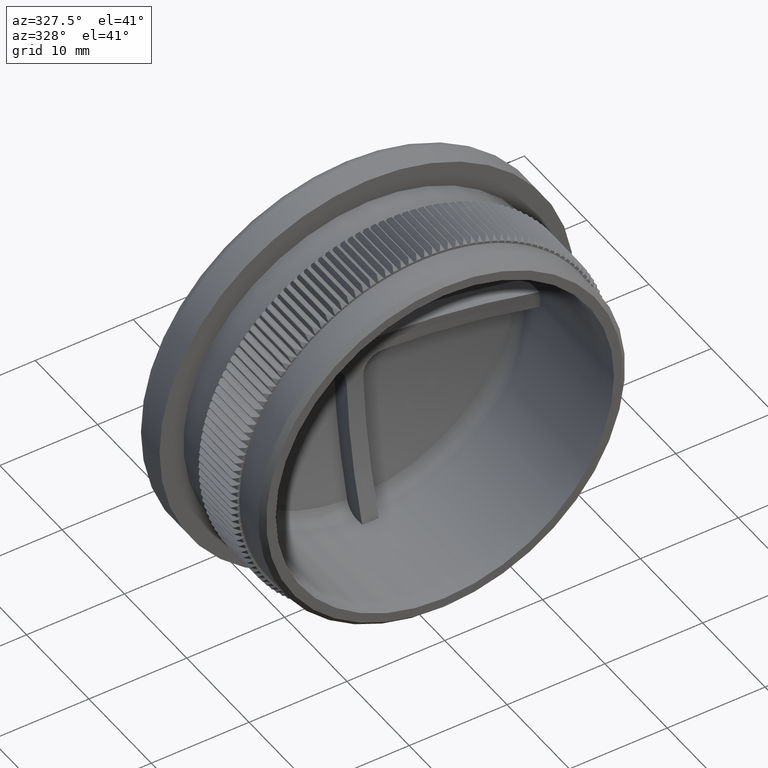
[diagram: clean part render]
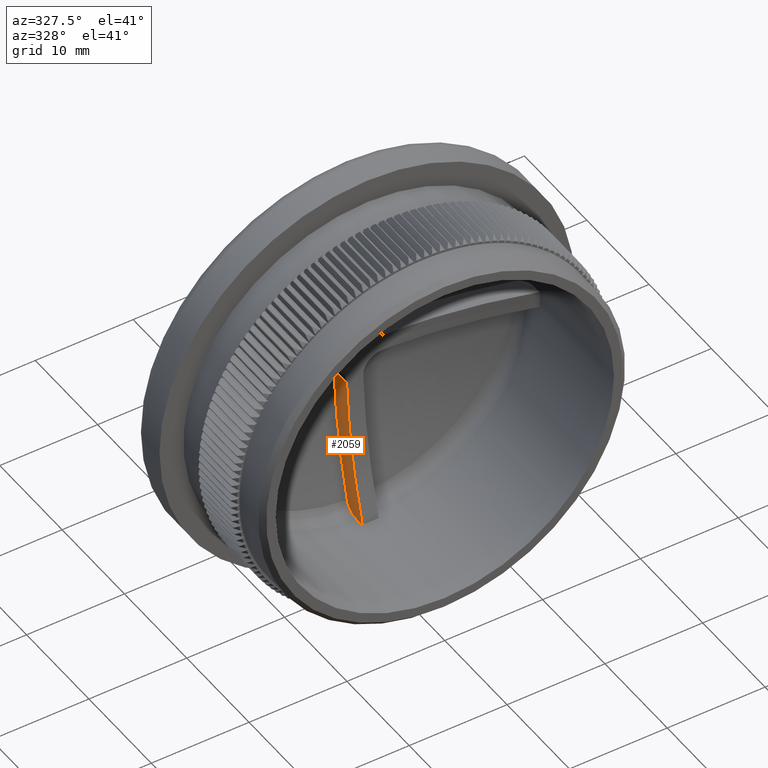
[diagram: same view with one face highlighted and labeled with its STEP entity id]
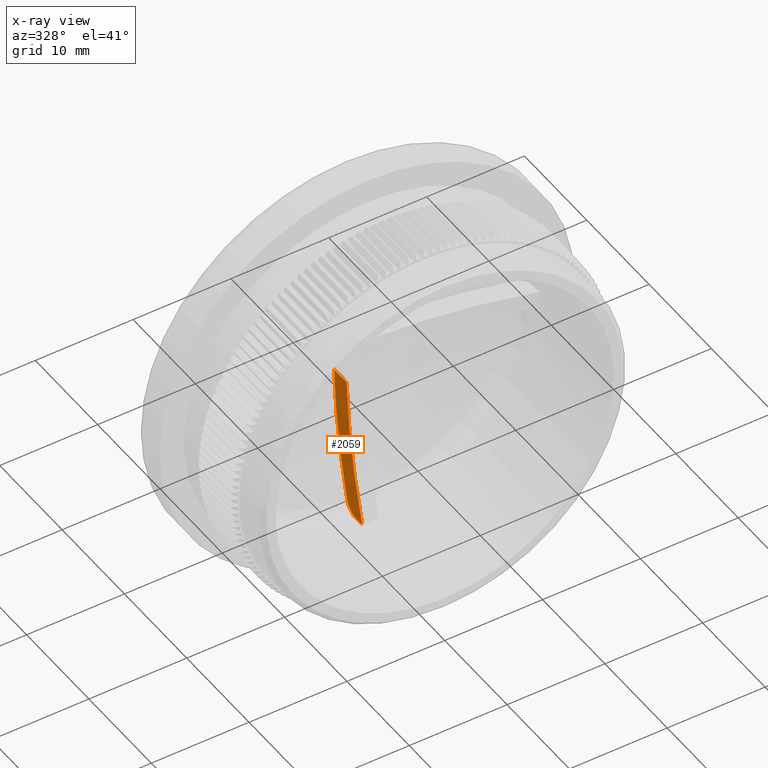
[diagram: x-ray of the same camera — body ghosted, the highlighted face saturated]
A machine part, auxiliary view. The second image highlights one B-rep face of the part: STEP entity #2059.
The next image is the same camera in x-ray: the body ghosted, the highlighted face saturated — about 1% of this face is hidden behind the body in this view.
In plain terms, the highlighted planar face has unit normal (-1, 0, -0).
Its self-contained STEP definition (entity closure, byte-faithful):
#202 = CARTESIAN_POINT ( 'NONE',  ( -0.8499999999999952000, 13.19721144811338200, -17.27910587964591500 ) ) ;
#346 = CARTESIAN_POINT ( 'NONE',  ( -0.8499999999999953100, 13.52293476500674000, -17.16952522254867800 ) ) ;
#2059 = ADVANCED_FACE ( 'NONE', ( #38614 ), #5551, .T. ) ;
#3874 = EDGE_CURVE ( 'NONE', #17814, #41129, #10917, .T. ) ;
#4713 = ORIENTED_EDGE ( 'NONE', *, *, #25062, .T. ) ;
#5551 = PLANE ( 'NONE',  #8185 ) ;
#5818 = CARTESIAN_POINT ( 'NONE',  ( -0.8499999999999953100, 11.91682442351743600, -17.27910587964549900 ) ) ;
#7122 = DIRECTION ( 'NONE',  ( -0.0000000000000000000, 1.000000000000000000, -0.0000000000000000000 ) ) ;
#7245 = CARTESIAN_POINT ( 'NONE',  ( -0.8500000000000003100, -44.72222222222214300, -2.412035669782916800E-016 ) ) ;
#8185 = AXIS2_PLACEMENT_3D ( 'NONE', #19015, #8846, #19307 ) ;
#8744 = VECTOR ( 'NONE', #7122, 1000.000000000000000 ) ;
#8846 = DIRECTION ( 'NONE',  ( -1.000000000000000000, 0.0000000000000000000, -2.837689023274018900E-016 ) ) ;
#10645 = EDGE_CURVE ( 'NONE', #43339, #28114, #31684, .T. ) ;
#10917 = CIRCLE ( 'NONE', #34327, 61.21632130263260100 ) ;
#10951 = LINE ( 'NONE', #38127, #8744 ) ;
#11498 = AXIS2_PLACEMENT_3D ( 'NONE', #31244, #21057, #14002 ) ;
#13973 = CARTESIAN_POINT ( 'NONE',  ( -0.8499999999999956500, 13.91317137231891400, -16.87082022688444700 ) ) ;
#14002 = DIRECTION ( 'NONE',  ( -2.837932155199158700E-016, 0.0000000000000000000, 1.000000000000000000 ) ) ;
#14411 = CARTESIAN_POINT ( 'NONE',  ( -0.8499999999999957600, 14.20773399754421400, -16.48017877426142900 ) ) ;
#16139 = VERTEX_POINT ( 'NONE', #44751 ) ;
#17255 = CARTESIAN_POINT ( 'NONE',  ( -0.8499999999999954300, 12.87208155133065400, -17.27910587964550600 ) ) ;
#17695 = DIRECTION ( 'NONE',  ( 1.000000000000000000, 0.0000000000000000000, 2.837689023274018900E-016 ) ) ;
#17731 = CARTESIAN_POINT ( 'NONE',  ( -0.8499999999999957600, 14.31863615773799100, -16.17451809435572200 ) ) ;
#17814 = VERTEX_POINT ( 'NONE', #17731 ) ;
#19015 = CARTESIAN_POINT ( 'NONE',  ( -0.8500000000000000900, 19.50100000000001200, -0.8499999999999999800 ) ) ;
#19307 = DIRECTION ( 'NONE',  ( -2.837689023274018900E-016, 0.0000000000000000000, 1.000000000000000000 ) ) ;
#19572 = ORIENTED_EDGE ( 'NONE', *, *, #10645, .T. ) ;
#21057 = DIRECTION ( 'NONE',  ( 1.000000000000000000, 0.0000000000000000000, 2.837689023274018900E-016 ) ) ;
#23831 = B_SPLINE_CURVE_WITH_KNOTS ( 'NONE', 3,
 ( #17255, #202, #346, #13973, #24514, #14411, #24371, #31509 ),
 .UNSPECIFIED., .F., .F.,
 ( 4, 2, 2, 4 ),
 ( 0.008442978348141021500, 0.009415021741756582400, 0.009901043438564363600, 0.01038706513537214300 ),
 .UNSPECIFIED. ) ;
#24059 = VECTOR ( 'NONE', #39116, 1000.000000000000000 ) ;
#24371 = CARTESIAN_POINT ( 'NONE',  ( -0.8499999999999958700, 14.27524568795814000, -16.33290368373574000 ) ) ;
#24514 = CARTESIAN_POINT ( 'NONE',  ( -0.8499999999999955400, 14.02450155715149000, -16.75252333358292500 ) ) ;
#24600 = CARTESIAN_POINT ( 'NONE',  ( -0.8499999999999995300, 16.42772049097383700, -2.849999999999999200 ) ) ;
#25062 = EDGE_CURVE ( 'NONE', #28114, #16139, #32249, .T. ) ;
#28114 = VERTEX_POINT ( 'NONE', #5818 ) ;
#31244 = CARTESIAN_POINT ( 'NONE',  ( -0.8500000000000003100, -44.72222222222214300, -2.412035669782916800E-016 ) ) ;
#31509 = CARTESIAN_POINT ( 'NONE',  ( -0.8499999999999957600, 14.31863615773799100, -16.17451809435572200 ) ) ;
#31548 = ORIENTED_EDGE ( 'NONE', *, *, #34635, .T. ) ;
#31684 = LINE ( 'NONE', #32504, #24059 ) ;
#32096 = DIRECTION ( 'NONE',  ( -2.833759754038349200E-016, 1.416879877019174500E-014, 1.000000000000000000 ) ) ;
#32249 = CIRCLE ( 'NONE', #11498, 59.21612200185236200 ) ;
#32504 = CARTESIAN_POINT ( 'NONE',  ( -0.8499999999999954300, 19.50100000000001200, -17.27910587964550600 ) ) ;
#34327 = AXIS2_PLACEMENT_3D ( 'NONE', #7245, #17695, #32096 ) ;
#34635 = EDGE_CURVE ( 'NONE', #16139, #41129, #10951, .T. ) ;
#35784 = EDGE_CURVE ( 'NONE', #43339, #17814, #23831, .T. ) ;
#38127 = CARTESIAN_POINT ( 'NONE',  ( -0.8499999999999995300, 16.48819759194961800, -2.849999999999999600 ) ) ;
#38614 = FACE_OUTER_BOUND ( 'NONE', #40915, .T. ) ;
#39116 = DIRECTION ( 'NONE',  ( 0.0000000000000000000, -1.000000000000000000, 0.0000000000000000000 ) ) ;
#39782 = ORIENTED_EDGE ( 'NONE', *, *, #35784, .F. ) ;
#40915 = EDGE_LOOP ( 'NONE', ( #4713, #31548, #43161, #39782, #19572 ) ) ;
#41129 = VERTEX_POINT ( 'NONE', #24600 ) ;
#43161 = ORIENTED_EDGE ( 'NONE', *, *, #3874, .F. ) ;
#43339 = VERTEX_POINT ( 'NONE', #44830 ) ;
#44751 = CARTESIAN_POINT ( 'NONE',  ( -0.8499999999999995300, 14.42527649867275700, -2.849999999999999600 ) ) ;
#44830 = CARTESIAN_POINT ( 'NONE',  ( -0.8499999999999954300, 12.87208155133065400, -17.27910587964550600 ) ) ;